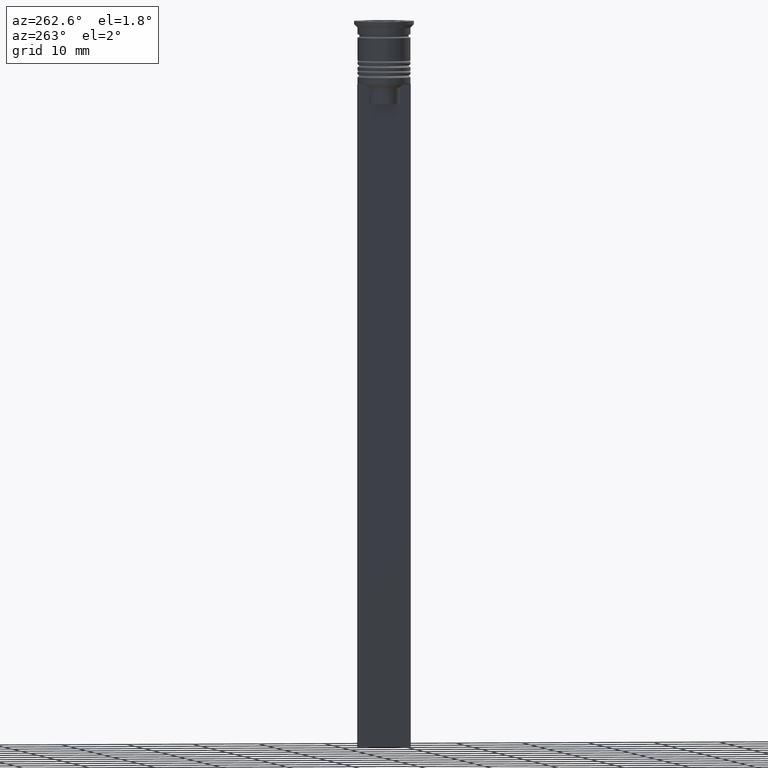
[diagram: clean part render]
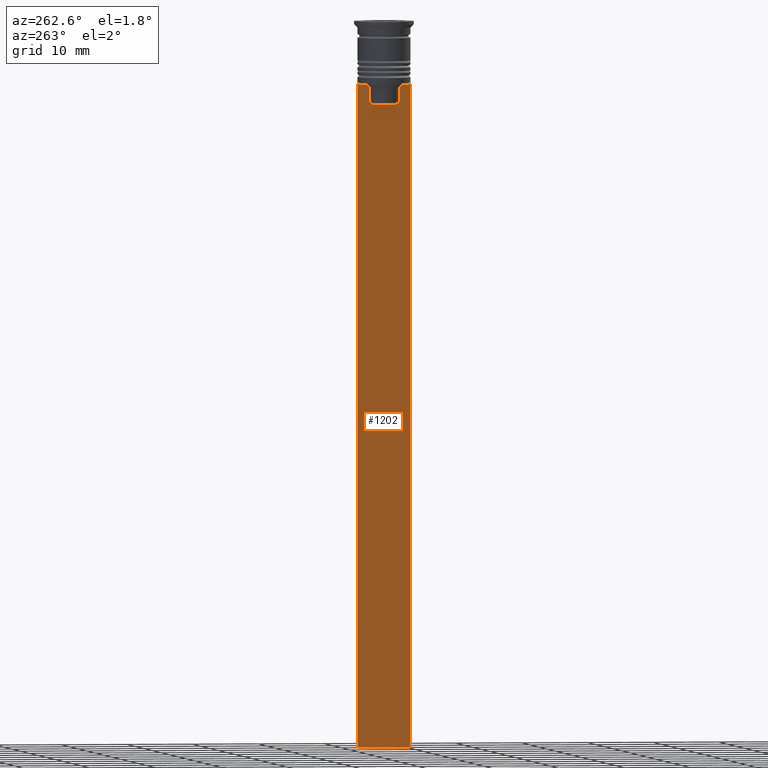
[diagram: same view with one face highlighted and labeled with its STEP entity id]
A machine part, auxiliary view. The second image highlights one B-rep face of the part: STEP entity #1202.
In plain terms, the highlighted planar face has unit normal (-1, 0, 0).
Its self-contained STEP definition (entity closure, byte-faithful):
#26 = VECTOR ( 'NONE', #737, 1000.000000000000000 ) ;
#27 = CARTESIAN_POINT ( 'NONE',  ( -0.5000000000000000000, -2.347338918861097135, -12.50000000000000000 ) ) ;
#33 = VERTEX_POINT ( 'NONE', #1064 ) ;
#66 = VERTEX_POINT ( 'NONE', #1998 ) ;
#102 = LINE ( 'NONE', #1461, #26 ) ;
#113 = LINE ( 'NONE', #503, #2058 ) ;
#118 = CARTESIAN_POINT ( 'NONE',  ( -0.5000000000000000000, 2.856571371417138572, -9.500000000000000000 ) ) ;
#137 = VERTEX_POINT ( 'NONE', #576 ) ;
#141 = ORIENTED_EDGE ( 'NONE', *, *, #342, .F. ) ;
#144 = VECTOR ( 'NONE', #287, 1000.000000000000000 ) ;
#217 = ORIENTED_EDGE ( 'NONE', *, *, #1867, .F. ) ;
#238 = CARTESIAN_POINT ( 'NONE',  ( -0.5000000000000000000, -2.856571371417138572, -9.500000000000000000 ) ) ;
#258 = DIRECTION ( 'NONE',  ( 0.000000000000000000, -1.000000000000000000, 0.000000000000000000 ) ) ;
#272 = AXIS2_PLACEMENT_3D ( 'NONE', #2225, #1248, #273 ) ;
#273 = DIRECTION ( 'NONE',  ( 0.000000000000000000, 0.000000000000000000, 1.000000000000000000 ) ) ;
#287 = DIRECTION ( 'NONE',  ( 0.000000000000000000, 0.000000000000000000, -1.000000000000000000 ) ) ;
#302 = VECTOR ( 'NONE', #2243, 1000.000000000000000 ) ;
#329 = LINE ( 'NONE', #339, #1898 ) ;
#334 = ORIENTED_EDGE ( 'NONE', *, *, #2455, .F. ) ;
#339 = CARTESIAN_POINT ( 'NONE',  ( -0.5000000000000000000, 4.000000000000000000, -1.437742251701450202 ) ) ;
#342 = EDGE_CURVE ( 'NONE', #616, #1882, #1603, .T. ) ;
#360 = VERTEX_POINT ( 'NONE', #987 ) ;
#363 = CARTESIAN_POINT ( 'NONE',  ( -0.5000000000000000000, -4.000000000000000000, -9.500000000000000000 ) ) ;
#481 = CARTESIAN_POINT ( 'NONE',  ( -0.5000000000000000000, -4.000000000000000000, -1.437742251701450202 ) ) ;
#503 = CARTESIAN_POINT ( 'NONE',  ( -0.5000000000000000000, 2.399999999999996803, -12.50000000000000000 ) ) ;
#518 = CARTESIAN_POINT ( 'NONE',  ( -0.5000000000000000000, -4.000000000000000000, -9.500000000000000000 ) ) ;
#529 = CARTESIAN_POINT ( 'NONE',  ( -0.5000000000000000000, 4.000000000000000000, -109.5000000000000000 ) ) ;
#530 = EDGE_CURVE ( 'NONE', #2350, #137, #864, .T. ) ;
#535 = CARTESIAN_POINT ( 'NONE',  ( -0.5000000000000000000, -3.867815921162741422, -9.500000000000000000 ) ) ;
#576 = CARTESIAN_POINT ( 'NONE',  ( -0.5000000000000000000, 2.347338918861097135, -12.50000000000000000 ) ) ;
#616 = VERTEX_POINT ( 'NONE', #535 ) ;
#630 = EDGE_LOOP ( 'NONE', ( #840, #1645, #334, #970, #993, #1063, #141, #1023, #217, #919, #2088, #804 ) ) ;
#675 = CARTESIAN_POINT ( 'NONE',  ( -0.5000000000000000000, -2.517408374291112416, -9.833662228483172285 ) ) ;
#703 = VERTEX_POINT ( 'NONE', #238 ) ;
#711 = CARTESIAN_POINT ( 'NONE',  ( -0.5000000000000000000, 2.687094542495897631, -9.666938847453439010 ) ) ;
#737 = DIRECTION ( 'NONE',  ( 0.000000000000000000, -1.000000000000000000, 0.000000000000000000 ) ) ;
#804 = ORIENTED_EDGE ( 'NONE', *, *, #530, .F. ) ;
#840 = ORIENTED_EDGE ( 'NONE', *, *, #1729, .F. ) ;
#864 = LINE ( 'NONE', #1824, #1307 ) ;
#885 = LINE ( 'NONE', #481, #144 ) ;
#888 = CARTESIAN_POINT ( 'NONE',  ( -0.5000000000000000000, 3.867815921162741422, -9.500000000000000000 ) ) ;
#897 = LINE ( 'NONE', #1096, #302 ) ;
#911 = CARTESIAN_POINT ( 'NONE',  ( -0.5000000000000000000, 2.517407211010871393, -9.833663366238582171 ) ) ;
#919 = ORIENTED_EDGE ( 'NONE', *, *, #2528, .F. ) ;
#931 = DIRECTION ( 'NONE',  ( 0.000000000000000000, -1.000000000000000000, 0.000000000000000000 ) ) ;
#970 = ORIENTED_EDGE ( 'NONE', *, *, #1911, .T. ) ;
#987 = CARTESIAN_POINT ( 'NONE',  ( -0.5000000000000000000, -2.347338918861097135, -10.00000000000000000 ) ) ;
#993 = ORIENTED_EDGE ( 'NONE', *, *, #1693, .F. ) ;
#1023 = ORIENTED_EDGE ( 'NONE', *, *, #1547, .F. ) ;
#1063 = ORIENTED_EDGE ( 'NONE', *, *, #1094, .F. ) ;
#1064 = CARTESIAN_POINT ( 'NONE',  ( -0.5000000000000000000, 4.000000000000000000, -9.500000000000000000 ) ) ;
#1094 = EDGE_CURVE ( 'NONE', #1882, #66, #885, .T. ) ;
#1096 = CARTESIAN_POINT ( 'NONE',  ( -0.5000000000000000000, -4.000000000000000000, -109.5000000000000000 ) ) ;
#1125 = EDGE_CURVE ( 'NONE', #137, #1765, #113, .T. ) ;
#1143 = B_SPLINE_CURVE_WITH_KNOTS ( 'NONE', 3,
 ( #2233, #675, #2031, #1376 ),
 .UNSPECIFIED., .F., .F.,
 ( 4, 4 ),
 ( 0.01178336557230038641, 0.01249758354768160454 ),
 .UNSPECIFIED. ) ;
#1202 = ADVANCED_FACE ( 'NONE', ( #2012 ), #1263, .T. ) ;
#1231 = CARTESIAN_POINT ( 'NONE',  ( -0.5000000000000000000, 2.347338918861097135, -10.00000000000000000 ) ) ;
#1248 = DIRECTION ( 'NONE',  ( -1.000000000000000000, 0.000000000000000000, 0.000000000000000000 ) ) ;
#1263 = PLANE ( 'NONE',  #272 ) ;
#1307 = VECTOR ( 'NONE', #2236, 1000.000000000000000 ) ;
#1376 = CARTESIAN_POINT ( 'NONE',  ( -0.5000000000000000000, -2.856571371417138572, -9.500000000000000000 ) ) ;
#1461 = CARTESIAN_POINT ( 'NONE',  ( -0.5000000000000000000, -4.000000000000000000, -9.500000000000000000 ) ) ;
#1500 = LINE ( 'NONE', #1712, #1979 ) ;
#1547 = EDGE_CURVE ( 'NONE', #703, #616, #2278, .T. ) ;
#1580 = CARTESIAN_POINT ( 'NONE',  ( -0.5000000000000000000, 2.856571371417138572, -9.500000000000000000 ) ) ;
#1603 = LINE ( 'NONE', #1811, #2382 ) ;
#1645 = ORIENTED_EDGE ( 'NONE', *, *, #2488, .F. ) ;
#1674 = LINE ( 'NONE', #2039, #1941 ) ;
#1688 = VERTEX_POINT ( 'NONE', #888 ) ;
#1689 = CARTESIAN_POINT ( 'NONE',  ( -0.5000000000000000000, 2.347338918861097135, -10.00000000000000000 ) ) ;
#1693 = EDGE_CURVE ( 'NONE', #66, #2207, #897, .T. ) ;
#1712 = CARTESIAN_POINT ( 'NONE',  ( -0.5000000000000000000, -2.347338918861097135, 0.000000000000000000 ) ) ;
#1729 = EDGE_CURVE ( 'NONE', #1787, #2350, #2372, .T. ) ;
#1765 = VERTEX_POINT ( 'NONE', #27 ) ;
#1787 = VERTEX_POINT ( 'NONE', #1580 ) ;
#1811 = CARTESIAN_POINT ( 'NONE',  ( -0.5000000000000000000, -4.000000000000000000, -9.500000000000000000 ) ) ;
#1824 = CARTESIAN_POINT ( 'NONE',  ( -0.5000000000000000000, 2.347338918861097135, 0.000000000000000000 ) ) ;
#1867 = EDGE_CURVE ( 'NONE', #360, #703, #1143, .T. ) ;
#1882 = VERTEX_POINT ( 'NONE', #518 ) ;
#1891 = DIRECTION ( 'NONE',  ( 0.000000000000000000, 0.000000000000000000, -1.000000000000000000 ) ) ;
#1898 = VECTOR ( 'NONE', #1891, 1000.000000000000000 ) ;
#1911 = EDGE_CURVE ( 'NONE', #33, #2207, #329, .T. ) ;
#1941 = VECTOR ( 'NONE', #2462, 1000.000000000000000 ) ;
#1963 = VECTOR ( 'NONE', #931, 1000.000000000000000 ) ;
#1979 = VECTOR ( 'NONE', #2330, 1000.000000000000000 ) ;
#1998 = CARTESIAN_POINT ( 'NONE',  ( -0.5000000000000000000, -4.000000000000000000, -109.5000000000000000 ) ) ;
#2012 = FACE_OUTER_BOUND ( 'NONE', #630, .T. ) ;
#2031 = CARTESIAN_POINT ( 'NONE',  ( -0.5000000000000000000, -2.687095498514037839, -9.666937905752043037 ) ) ;
#2039 = CARTESIAN_POINT ( 'NONE',  ( -0.5000000000000000000, -4.000000000000000000, -9.500000000000000000 ) ) ;
#2058 = VECTOR ( 'NONE', #258, 1000.000000000000000 ) ;
#2088 = ORIENTED_EDGE ( 'NONE', *, *, #1125, .F. ) ;
#2207 = VERTEX_POINT ( 'NONE', #529 ) ;
#2225 = CARTESIAN_POINT ( 'NONE',  ( -0.5000000000000000000, -4.000000000000000000, -1.437742251701450202 ) ) ;
#2233 = CARTESIAN_POINT ( 'NONE',  ( -0.5000000000000000000, -2.347338918861097135, -10.00000000000000000 ) ) ;
#2236 = DIRECTION ( 'NONE',  ( 0.000000000000000000, 0.000000000000000000, -1.000000000000000000 ) ) ;
#2243 = DIRECTION ( 'NONE',  ( 0.000000000000000000, 1.000000000000000000, 0.000000000000000000 ) ) ;
#2278 = LINE ( 'NONE', #363, #1963 ) ;
#2330 = DIRECTION ( 'NONE',  ( -0.000000000000000000, -0.000000000000000000, 1.000000000000000000 ) ) ;
#2350 = VERTEX_POINT ( 'NONE', #1231 ) ;
#2364 = DIRECTION ( 'NONE',  ( 0.000000000000000000, -1.000000000000000000, 0.000000000000000000 ) ) ;
#2372 = B_SPLINE_CURVE_WITH_KNOTS ( 'NONE', 3,
 ( #118, #711, #911, #1689 ),
 .UNSPECIFIED., .F., .F.,
 ( 4, 4 ),
 ( 0.004956812174141195064, 0.005670477137898153989 ),
 .UNSPECIFIED. ) ;
#2382 = VECTOR ( 'NONE', #2364, 1000.000000000000000 ) ;
#2455 = EDGE_CURVE ( 'NONE', #33, #1688, #102, .T. ) ;
#2462 = DIRECTION ( 'NONE',  ( 0.000000000000000000, -1.000000000000000000, 0.000000000000000000 ) ) ;
#2488 = EDGE_CURVE ( 'NONE', #1688, #1787, #1674, .T. ) ;
#2528 = EDGE_CURVE ( 'NONE', #1765, #360, #1500, .T. ) ;